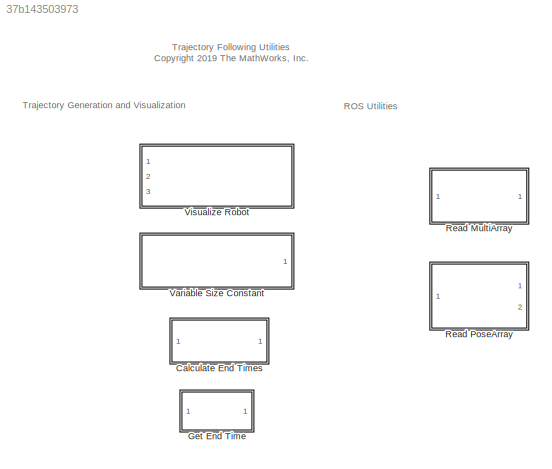
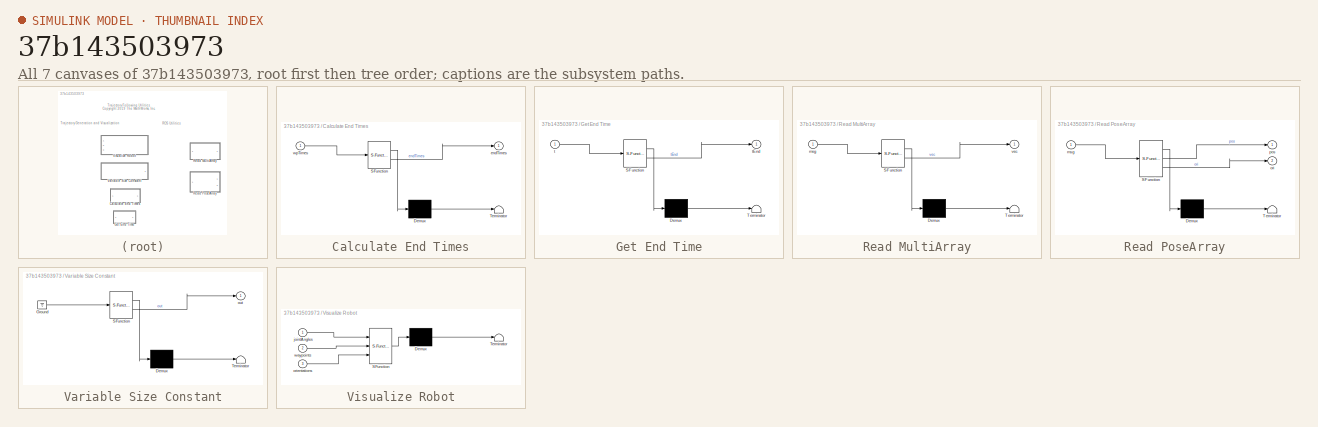
[diagram: thumbnail index - all 7 canvases of the model, root first then tree order]
MODEL slx_37b143503973
KIND library
CONFIG AbsTol = auto
CONFIG EnableMultiTasking = off
CONFIG FixedStep = auto
CONFIG MaxStep = auto
CONFIG MinStep = auto
CONFIG RelTol = 1e-3
CONFIG SampleTimeConstraint = Unconstrained
CONFIG Solver = VariableStepAuto
CONFIG SolverName = VariableStepAuto
CONFIG StartTime = 0.0
CONFIG StopTime = 10.0
BLOCK [SubSystem] Calculate End Times
  ErrorFcn = Stateflow.Translate.translate
  PermitHierarchicalResolution = ExplicitOnly
  Ports = [1, 1]
  RequestExecContextInheritance = off
  SFBlockType = MATLAB Function
  TreatAsAtomicUnit = on
BLOCK [Demux] Calculate End Times/ Demux 
  Outputs = 1
  Ports = [1, 1]
BLOCK [S-Function] Calculate End Times/ SFunction 
  EnableBusSupport = off
  FunctionName = sf_sfun
  Parameters = trajDof
  PortCounts = [1 2]
  Ports = [1, 2]
  SFcnIsStateOwnerBlock = off
  SFunctionDeploymentMode = off
  Tag = Stateflow S-Function 4
BLOCK [Terminator] Calculate End Times/ Terminator 
BLOCK [Outport] Calculate End Times/endTimes
  VectorParamsAs1DForOutWhenUnconnected = off
BLOCK [Inport] Calculate End Times/wpTimes
BLOCK [SubSystem] Get End Time
  ErrorFcn = Stateflow.Translate.translate
  PermitHierarchicalResolution = ExplicitOnly
  Ports = [1, 1]
  RequestExecContextInheritance = off
  SFBlockType = MATLAB Function
  TreatAsAtomicUnit = on
BLOCK [Demux] Get End Time/ Demux 
  Outputs = 1
  Ports = [1, 1]
BLOCK [S-Function] Get End Time/ SFunction 
  EnableBusSupport = off
  FunctionName = sf_sfun
  PortCounts = [1 2]
  Ports = [1, 2]
  SFcnIsStateOwnerBlock = off
  SFunctionDeploymentMode = off
  Tag = Stateflow S-Function 5
BLOCK [Terminator] Get End Time/ Terminator 
BLOCK [Inport] Get End Time/t
BLOCK [Outport] Get End Time/tEnd
  VectorParamsAs1DForOutWhenUnconnected = off
BLOCK [SubSystem] Read MultiArray
  ErrorFcn = Stateflow.Translate.translate
  PermitHierarchicalResolution = ExplicitOnly
  Ports = [1, 1]
  RequestExecContextInheritance = off
  SFBlockType = MATLAB Function
  TreatAsAtomicUnit = on
BLOCK [Demux] Read MultiArray/ Demux 
  Outputs = 1
  Ports = [1, 1]
BLOCK [S-Function] Read MultiArray/ SFunction 
  EnableBusSupport = off
  FunctionName = sf_sfun
  PortCounts = [1 2]
  Ports = [1, 2]
  SFcnIsStateOwnerBlock = off
  SFunctionDeploymentMode = off
  Tag = Stateflow S-Function 1
BLOCK [Terminator] Read MultiArray/ Terminator 
BLOCK [Inport] Read MultiArray/msg
BLOCK [Outport] Read MultiArray/vec
  VectorParamsAs1DForOutWhenUnconnected = off
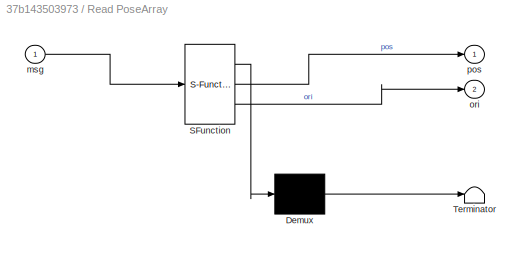
BLOCK [SubSystem] Read PoseArray
  ErrorFcn = Stateflow.Translate.translate
  PermitHierarchicalResolution = ExplicitOnly
  Ports = [1, 2]
  RequestExecContextInheritance = off
  SFBlockType = MATLAB Function
  TreatAsAtomicUnit = on
BLOCK [Demux] Read PoseArray/ Demux 
  Outputs = 1
  Ports = [1, 1]
BLOCK [S-Function] Read PoseArray/ SFunction 
  EnableBusSupport = off
  FunctionName = sf_sfun
  PortCounts = [1 3]
  Ports = [1, 3]
  SFcnIsStateOwnerBlock = off
  SFunctionDeploymentMode = off
  Tag = Stateflow S-Function 2
BLOCK [Terminator] Read PoseArray/ Terminator 
BLOCK [Inport] Read PoseArray/msg
BLOCK [Outport] Read PoseArray/ori
  Port = 2
  VectorParamsAs1DForOutWhenUnconnected = off
BLOCK [Outport] Read PoseArray/pos
  VectorParamsAs1DForOutWhenUnconnected = off
BLOCK [SubSystem] Variable Size Constant
  ErrorFcn = Stateflow.Translate.translate
  PermitHierarchicalResolution = ExplicitOnly
  Ports = [0, 1]
  RequestExecContextInheritance = off
  SFBlockType = MATLAB Function
  TreatAsAtomicUnit = on
BLOCK [Demux] Variable Size Constant/ Demux 
  Outputs = 1
  Ports = [1, 1]
BLOCK [Ground] Variable Size Constant/ Ground 
BLOCK [S-Function] Variable Size Constant/ SFunction 
  EnableBusSupport = off
  FunctionName = sf_sfun
  Parameters = val
  PortCounts = [1 2]
  Ports = [1, 2]
  SFcnIsStateOwnerBlock = off
  SFunctionDeploymentMode = off
  Tag = Stateflow S-Function 12
BLOCK [Terminator] Variable Size Constant/ Terminator 
BLOCK [Outport] Variable Size Constant/out
  VectorParamsAs1DForOutWhenUnconnected = off
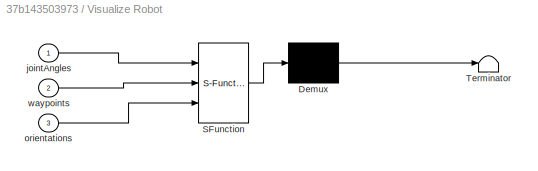
BLOCK [SubSystem] Visualize Robot
  ErrorFcn = Stateflow.Translate.translate
  InitFcn = clear visualizeRobot;
  PermitHierarchicalResolution = ExplicitOnly
  Ports = [3]
  RequestExecContextInheritance = off
  SFBlockType = MATLAB Function
  TreatAsAtomicUnit = on
BLOCK [Demux] Visualize Robot/ Demux 
  Outputs = 1
  Ports = [1, 1]
BLOCK [S-Function] Visualize Robot/ SFunction 
  EnableBusSupport = off
  FunctionName = sf_sfun
  Parameters = plotMode
  PortCounts = [3 1]
  Ports = [3, 1]
  SFcnIsStateOwnerBlock = off
  SFunctionDeploymentMode = off
  Tag = Stateflow S-Function 3
BLOCK [Terminator] Visualize Robot/ Terminator 
BLOCK [Inport] Visualize Robot/jointAngles
BLOCK [Inport] Visualize Robot/orientations
  Port = 3
BLOCK [Inport] Visualize Robot/waypoints
  Port = 2
ANNOTATION (root): Trajectory Following Utilities <copyright redacted>
ANNOTATION (root): ROS Utilities
ANNOTATION (root): Trajectory Generation and Visualization
CHART Read MultiArray states=1 transitions=1
  STATE_LABEL 'eML_blk_kernel()'
  STATE_LABEL 'SCRIPT:\nfunction vec = readMultiArray(msg)\n\nlen = msg.Data_SL_Info.ReceivedLength;\nvec = zeros(1,len);\n\nfor idx = 1:len\n   vec(idx) = msg.Data(idx); \nend\n'
CHART Read PoseArray states=1 transitions=1
  STATE_LABEL 'eML_blk_kernel()'
  STATE_LABEL 'SCRIPT:\nfunction [pos,ori] = readPoseArray(msg)\n\n% Get the length of the received message\nlen = msg.Poses_SL_Info.ReceivedLength;\n\n% Extract the positions and orientations (in quaternion form)\npos = zeros(3,len);\nori = zeros(3,len);\nfor idx = 1:len\n    posData = msg.Poses(idx).Position;\n    pos(:,idx) = [posData.X; posData.Y; posData.Z];\n    oriData = msg.Poses(idx).Orientation;\n    ori(:,idx) = q...<+59ch>'
CHART Visualize Robot states=1 transitions=1
  STATE_LABEL 'eML_blk_kernel()'
  STATE_LABEL "SCRIPT:\nfunction showRobot(jointAngles,waypoints,orientations,plotMode)\n% Wrapper function that visualizes the robot in simulation.\n       \n    % Extract rigid body tree and end effector names from the block dialog\n    coder.extrinsic('gcb');\n    coder.extrinsic('get_param');\n    persistent rbtName eeName\n    if isempty(rbtName)\n       rbtName = get_param(gcb,'rbtName'); \n       eeName = get_param...<+191ch>"
CHART Calculate End Times states=1 transitions=1
  STATE_LABEL 'eML_blk_kernel()'
  STATE_LABEL 'SCRIPT:\nfunction endTimes = calcEndTimes(wpTimes, trajDof)\n\n% Calculate trajectory segment end times from waypoint time vector,\n% and replicate the rows based on the DOFs of the trajectory.\nendTimes = repmat(diff(wpTimes),[trajDof 1]);'
CHART Get End Time states=1 transitions=1
  STATE_LABEL 'eML_blk_kernel()'
  STATE_LABEL 'SCRIPT:\nfunction tEnd = getEnd(t)\n\nif ~isempty(t)\n    tEnd = t(end);\nelse\n    tEnd = 0;\nend\n'
CHART Variable Size Constant states=1 transitions=1
  STATE_LABEL 'eML_blk_kernel()'
  STATE_LABEL 'SCRIPT:\nfunction out = varSizeConst(val)\n% Creates a variable-size constant (up to 2D)\n\nout = val;\n\nend\n'
CHART  states=0 transitions=0
CHART  states=0 transitions=0
CHART  states=0 transitions=0
CHART  states=0 transitions=0
CHART  states=0 transitions=0
CHART  states=0 transitions=0
